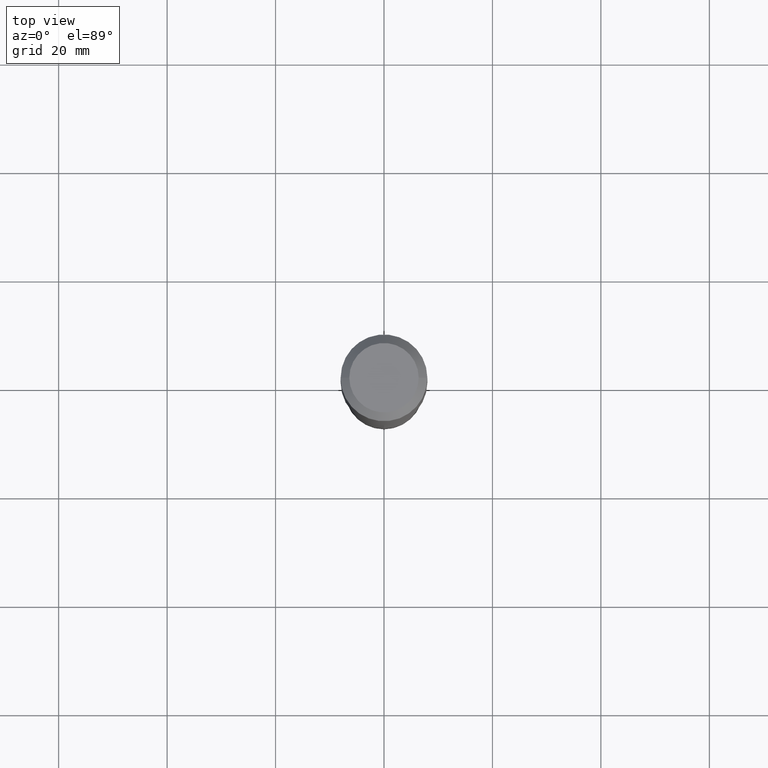
[diagram: clean part render]
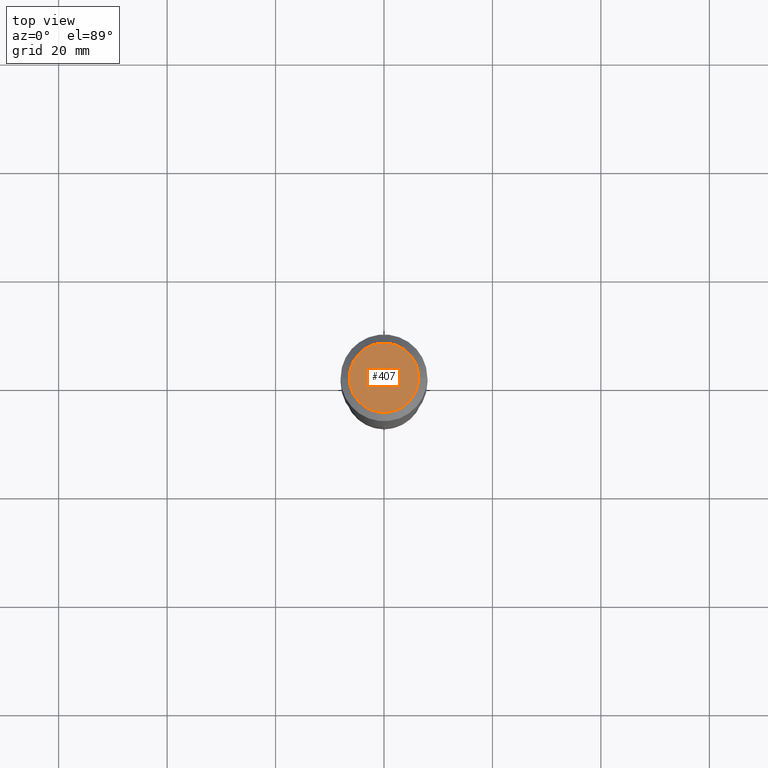
[diagram: same view with one face highlighted and labeled with its STEP entity id]
A machine part, top view. The second image highlights one B-rep face of the part: STEP entity #407.
In plain terms, the highlighted planar face has unit normal (0, -0, -1).
Its self-contained STEP definition (entity closure, byte-faithful):
#4 = AXIS2_PLACEMENT_3D ( 'NONE', #250, #357, #217 ) ;
#105 = DIRECTION ( 'NONE',  ( 1.000000000000000000, -6.982962677686266711E-15, 4.876115136096691995E-29 ) ) ;
#111 = DIRECTION ( 'NONE',  ( -2.445468806185136597E-29, 3.491481338843145583E-15, 1.000000000000000000 ) ) ;
#151 = EDGE_CURVE ( 'NONE', #351, #458, #469, .T. ) ;
#172 = PLANE ( 'NONE',  #4 ) ;
#213 = FACE_OUTER_BOUND ( 'NONE', #434, .T. ) ;
#217 = DIRECTION ( 'NONE',  ( -1.000000000000000000, 6.982962677686265922E-15, -4.876176775795935793E-29 ) ) ;
#250 = CARTESIAN_POINT ( 'NONE',  ( -4.713871149261284790E-47, 6.730158695841843144E-33, 1.927594061857935750E-18 ) ) ;
#257 = CIRCLE ( 'NONE', #449, 0.2519600000000000173 ) ;
#302 = ORIENTED_EDGE ( 'NONE', *, *, #387, .T. ) ;
#319 = AXIS2_PLACEMENT_3D ( 'NONE', #484, #111, #105 ) ;
#351 = VERTEX_POINT ( 'NONE', #372 ) ;
#357 = DIRECTION ( 'NONE',  ( 2.438088387897960049E-29, -3.491481338843145188E-15, -1.000000000000000000 ) ) ;
#372 = CARTESIAN_POINT ( 'NONE',  ( 0.2519600000000000173, -2.054606664725195058E-15, 3.855188123729206640E-18 ) ) ;
#387 = EDGE_CURVE ( 'NONE', #458, #351, #257, .T. ) ;
#407 = ADVANCED_FACE ( 'NONE', ( #213 ), #172, .F. ) ;
#416 = ORIENTED_EDGE ( 'NONE', *, *, #151, .T. ) ;
#434 = EDGE_LOOP ( 'NONE', ( #302, #416 ) ) ;
#438 = DIRECTION ( 'NONE',  ( 1.000000000000000000, -6.982962677686266711E-15, 4.876115136096691995E-29 ) ) ;
#441 = CARTESIAN_POINT ( 'NONE',  ( -9.427742298522569579E-47, 1.346031739168368629E-32, 3.855188123715871501E-18 ) ) ;
#449 = AXIS2_PLACEMENT_3D ( 'NONE', #441, #467, #438 ) ;
#458 = VERTEX_POINT ( 'NONE', #476 ) ;
#467 = DIRECTION ( 'NONE',  ( -2.445468806185136597E-29, 3.491481338843145583E-15, 1.000000000000000000 ) ) ;
#469 = CIRCLE ( 'NONE', #319, 0.2519600000000000173 ) ;
#476 = CARTESIAN_POINT ( 'NONE',  ( -0.2519600000000000173, 1.869391481036695286E-15, 3.855188123703182704E-18 ) ) ;
#484 = CARTESIAN_POINT ( 'NONE',  ( -9.427742298522569579E-47, 1.346031739168368629E-32, 3.855188123715871501E-18 ) ) ;